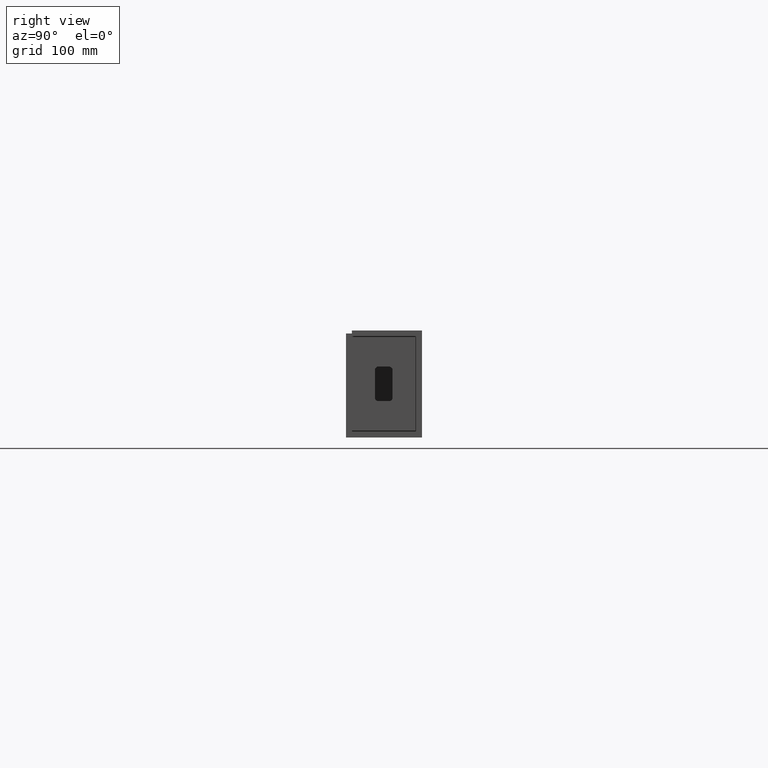
[diagram: clean part render]
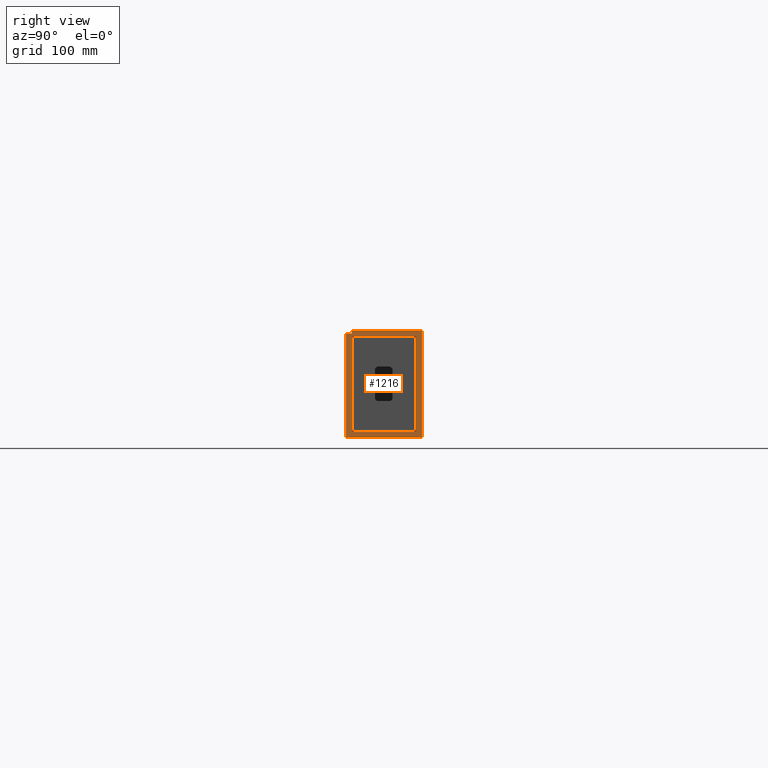
[diagram: same view with one face highlighted and labeled with its STEP entity id]
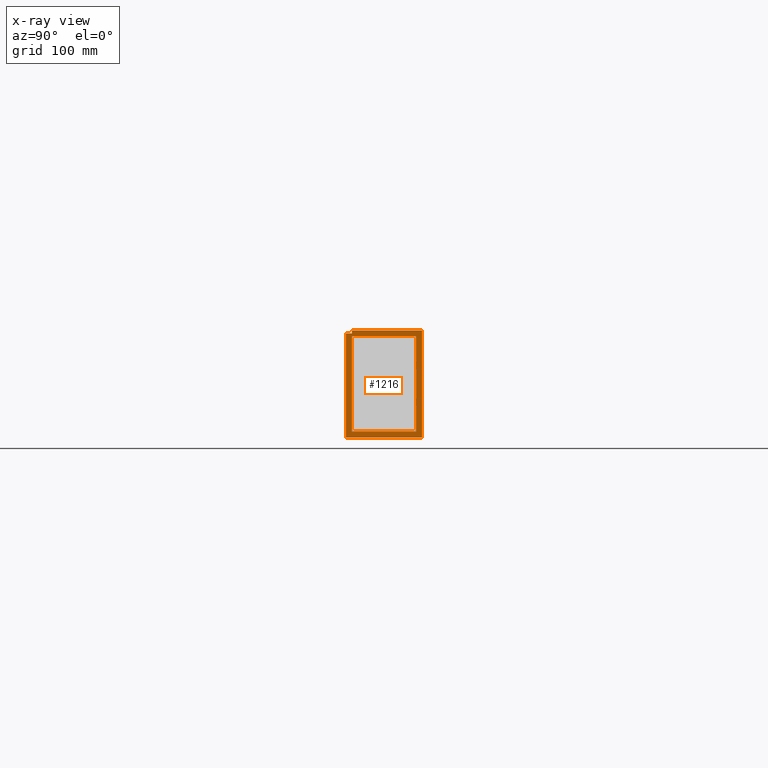
[diagram: x-ray of the same camera — body ghosted, the highlighted face saturated]
A machine part, right view. The second image highlights one B-rep face of the part: STEP entity #1216.
The next image is the same camera in x-ray: the body ghosted, the highlighted face saturated — about 0% of this face is hidden behind the body in this view.
In plain terms, the highlighted planar face has unit normal (1, 0, -0).
Its self-contained STEP definition (entity closure, byte-faithful):
#82 = DIRECTION ( 'NONE',  ( 0.0000000000000000000, -2.151595008963482531E-16, 1.000000000000000000 ) ) ;
#83 = CARTESIAN_POINT ( 'NONE',  ( 975.0000000000000000, 95.00000000000000000, 8.000000000000000000 ) ) ;
#84 = LINE ( 'NONE', #83, #1557 ) ;
#110 = CARTESIAN_POINT ( 'NONE',  ( 975.0000000000000000, 102.9999999999999858, 144.9999999999999716 ) ) ;
#146 = DIRECTION ( 'NONE',  ( 0.0000000000000000000, 0.0000000000000000000, -1.000000000000000000 ) ) ;
#147 = CARTESIAN_POINT ( 'NONE',  ( 975.0000000000000000, 7.999999999999983125, 145.0000000000000000 ) ) ;
#148 = LINE ( 'NONE', #147, #1186 ) ;
#160 = DIRECTION ( 'NONE',  ( -0.0000000000000000000, -0.0000000000000000000, -1.000000000000000000 ) ) ;
#162 = CARTESIAN_POINT ( 'NONE',  ( 975.0000000000000000, 8.000000000000000000, 8.000000000000000000 ) ) ;
#164 = VECTOR ( 'NONE', #1392, 1000.000000000000000 ) ;
#166 = LINE ( 'NONE', #162, #259 ) ;
#244 = DIRECTION ( 'NONE',  ( -0.0000000000000000000, -1.000000000000000000, -0.0000000000000000000 ) ) ;
#246 = CARTESIAN_POINT ( 'NONE',  ( 975.0000000000000000, 8.000000000000000000, 136.9999999999999432 ) ) ;
#247 = LINE ( 'NONE', #246, #967 ) ;
#259 = VECTOR ( 'NONE', #160, 1000.000000000000000 ) ;
#276 = EDGE_CURVE ( 'NONE', #955, #567, #1449, .T. ) ;
#280 = VECTOR ( 'NONE', #464, 1000.000000000000000 ) ;
#290 = EDGE_CURVE ( 'NONE', #402, #717, #1504, .T. ) ;
#322 = EDGE_CURVE ( 'NONE', #886, #955, #466, .T. ) ;
#324 = EDGE_CURVE ( 'NONE', #1123, #951, #811, .T. ) ;
#337 = CARTESIAN_POINT ( 'NONE',  ( 975.0000000000000000, 7.999999999999983125, 141.0000000000000000 ) ) ;
#356 = EDGE_CURVE ( 'NONE', #567, #1243, #427, .T. ) ;
#359 = CARTESIAN_POINT ( 'NONE',  ( 975.0000000000000000, 94.99999999999997158, 136.9999999999999432 ) ) ;
#381 = VERTEX_POINT ( 'NONE', #359 ) ;
#402 = VERTEX_POINT ( 'NONE', #337 ) ;
#423 = DIRECTION ( 'NONE',  ( -0.0000000000000000000, -1.000000000000000000, 2.921639538487254261E-16 ) ) ;
#425 = CARTESIAN_POINT ( 'NONE',  ( 975.0000000000000000, 7.999999999999983125, 145.0000000000000000 ) ) ;
#427 = LINE ( 'NONE', #425, #1523 ) ;
#455 = EDGE_CURVE ( 'NONE', #381, #818, #247, .T. ) ;
#458 = VECTOR ( 'NONE', #866, 1000.000000000000000 ) ;
#464 = DIRECTION ( 'NONE',  ( 0.0000000000000000000, 1.000000000000000000, 0.0000000000000000000 ) ) ;
#466 = LINE ( 'NONE', #478, #280 ) ;
#478 = CARTESIAN_POINT ( 'NONE',  ( 975.0000000000000000, 0.0000000000000000000, 0.0000000000000000000 ) ) ;
#479 = CARTESIAN_POINT ( 'NONE',  ( 975.0000000000000000, 8.000000000000000000, 8.000000000000000000 ) ) ;
#493 = DIRECTION ( 'NONE',  ( 0.0000000000000000000, 1.000000000000000000, 0.0000000000000000000 ) ) ;
#513 = EDGE_CURVE ( 'NONE', #818, #1123, #166, .T. ) ;
#523 = EDGE_CURVE ( 'NONE', #1243, #402, #148, .T. ) ;
#567 = VERTEX_POINT ( 'NONE', #110 ) ;
#587 = ORIENTED_EDGE ( 'NONE', *, *, #276, .T. ) ;
#597 = EDGE_CURVE ( 'NONE', #951, #381, #84, .T. ) ;
#717 = VERTEX_POINT ( 'NONE', #1437 ) ;
#740 = ORIENTED_EDGE ( 'NONE', *, *, #322, .T. ) ;
#796 = VECTOR ( 'NONE', #1498, 1000.000000000000000 ) ;
#811 = LINE ( 'NONE', #479, #862 ) ;
#818 = VERTEX_POINT ( 'NONE', #1349 ) ;
#862 = VECTOR ( 'NONE', #493, 1000.000000000000000 ) ;
#866 = DIRECTION ( 'NONE',  ( -0.0000000000000000000, 1.230300337572203632E-16, -1.000000000000000000 ) ) ;
#869 = CARTESIAN_POINT ( 'NONE',  ( 975.0000000000000000, 0.0000000000000000000, 0.0000000000000000000 ) ) ;
#870 = LINE ( 'NONE', #869, #458 ) ;
#886 = VERTEX_POINT ( 'NONE', #1268 ) ;
#951 = VERTEX_POINT ( 'NONE', #1245 ) ;
#955 = VERTEX_POINT ( 'NONE', #1244 ) ;
#967 = VECTOR ( 'NONE', #244, 1000.000000000000000 ) ;
#969 = CARTESIAN_POINT ( 'NONE',  ( 975.0000000000000000, 7.999999999999983125, 145.0000000000000000 ) ) ;
#978 = DIRECTION ( 'NONE',  ( -0.0000000000000000000, 0.0000000000000000000, -1.000000000000000000 ) ) ;
#983 = DIRECTION ( 'NONE',  ( 1.000000000000000000, 0.0000000000000000000, -0.0000000000000000000 ) ) ;
#984 = EDGE_LOOP ( 'NONE', ( #740, #587, #1473, #1479, #1468, #1343 ) ) ;
#985 = CARTESIAN_POINT ( 'NONE',  ( 975.0000000000000000, 0.0000000000000000000, 0.0000000000000000000 ) ) ;
#986 = PLANE ( 'NONE',  #1067 ) ;
#991 = FACE_BOUND ( 'NONE', #1147, .T. ) ;
#995 = FACE_OUTER_BOUND ( 'NONE', #984, .T. ) ;
#1060 = CARTESIAN_POINT ( 'NONE',  ( 975.0000000000000000, 8.000000000000000000, 8.000000000000000000 ) ) ;
#1067 = AXIS2_PLACEMENT_3D ( 'NONE', #985, #983, #978 ) ;
#1123 = VERTEX_POINT ( 'NONE', #1060 ) ;
#1147 = EDGE_LOOP ( 'NONE', ( #1336, #1346, #1395, #1400 ) ) ;
#1186 = VECTOR ( 'NONE', #146, 1000.000000000000000 ) ;
#1216 = ADVANCED_FACE ( 'NONE', ( #995, #991 ), #986, .T. ) ;
#1243 = VERTEX_POINT ( 'NONE', #969 ) ;
#1244 = CARTESIAN_POINT ( 'NONE',  ( 975.0000000000000000, 103.0000000000000000, 0.0000000000000000000 ) ) ;
#1245 = CARTESIAN_POINT ( 'NONE',  ( 975.0000000000000000, 95.00000000000000000, 8.000000000000000000 ) ) ;
#1268 = CARTESIAN_POINT ( 'NONE',  ( 975.0000000000000000, 0.0000000000000000000, 0.0000000000000000000 ) ) ;
#1336 = ORIENTED_EDGE ( 'NONE', *, *, #597, .F. ) ;
#1343 = ORIENTED_EDGE ( 'NONE', *, *, #1443, .T. ) ;
#1346 = ORIENTED_EDGE ( 'NONE', *, *, #324, .F. ) ;
#1349 = CARTESIAN_POINT ( 'NONE',  ( 975.0000000000000000, 8.000000000000000000, 136.9999999999999432 ) ) ;
#1392 = DIRECTION ( 'NONE',  ( 0.0000000000000000000, -9.570888143320318106E-17, 1.000000000000000000 ) ) ;
#1395 = ORIENTED_EDGE ( 'NONE', *, *, #513, .F. ) ;
#1400 = ORIENTED_EDGE ( 'NONE', *, *, #455, .F. ) ;
#1437 = CARTESIAN_POINT ( 'NONE',  ( 975.0000000000000000, -1.734723475976807094E-14, 141.0000000000000000 ) ) ;
#1443 = EDGE_CURVE ( 'NONE', #717, #886, #870, .T. ) ;
#1449 = LINE ( 'NONE', #1452, #164 ) ;
#1452 = CARTESIAN_POINT ( 'NONE',  ( 975.0000000000000000, 103.0000000000000000, 0.0000000000000000000 ) ) ;
#1468 = ORIENTED_EDGE ( 'NONE', *, *, #290, .T. ) ;
#1473 = ORIENTED_EDGE ( 'NONE', *, *, #356, .T. ) ;
#1479 = ORIENTED_EDGE ( 'NONE', *, *, #523, .T. ) ;
#1498 = DIRECTION ( 'NONE',  ( 0.0000000000000000000, -1.000000000000000000, 0.0000000000000000000 ) ) ;
#1501 = CARTESIAN_POINT ( 'NONE',  ( 975.0000000000000000, 7.999999999999983125, 141.0000000000000000 ) ) ;
#1504 = LINE ( 'NONE', #1501, #796 ) ;
#1523 = VECTOR ( 'NONE', #423, 1000.000000000000000 ) ;
#1557 = VECTOR ( 'NONE', #82, 1000.000000000000000 ) ;